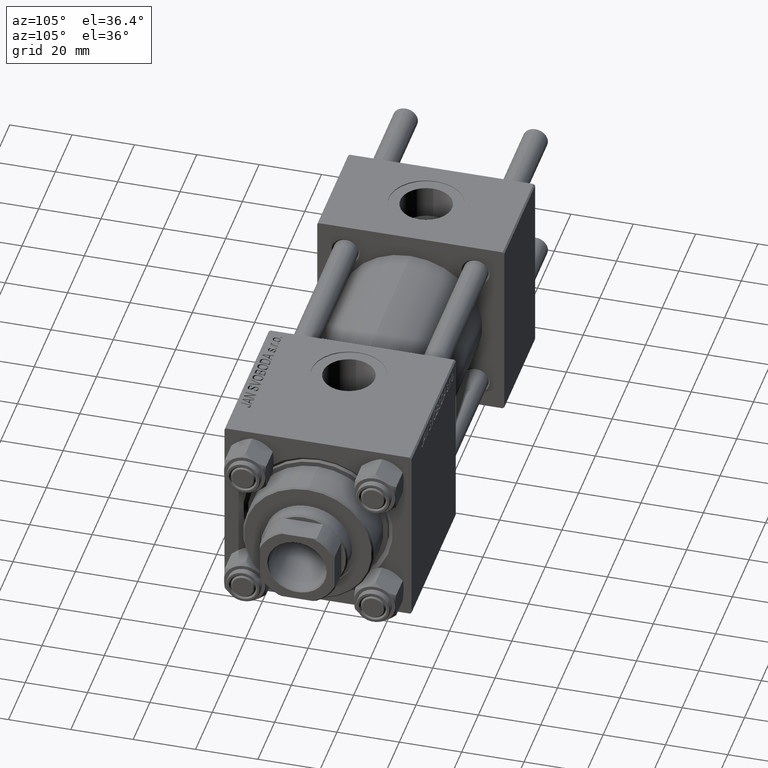
[diagram: clean part render]
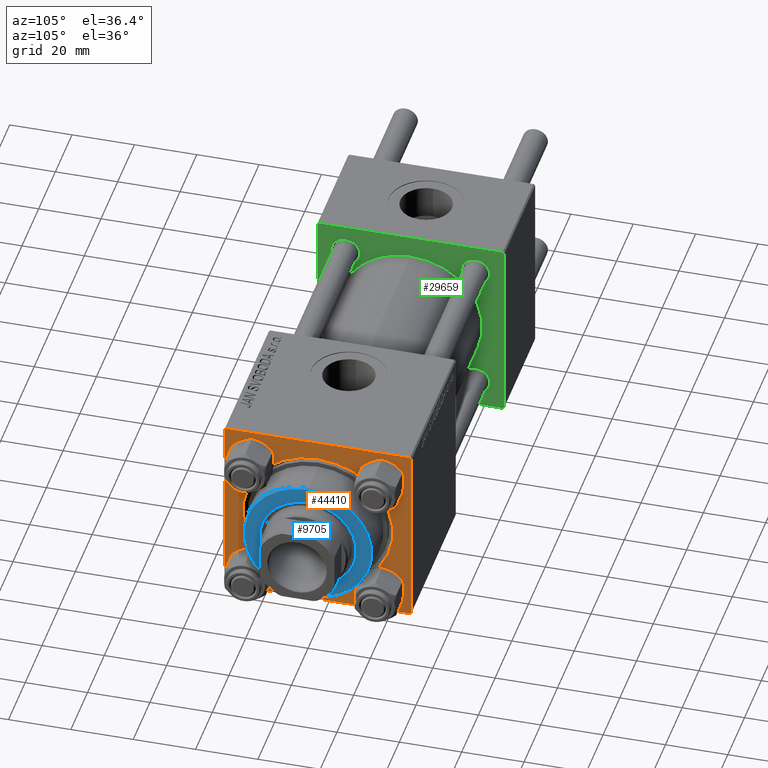
[diagram: same view with three faces highlighted in distinct colors, each labeled with its STEP entity id]
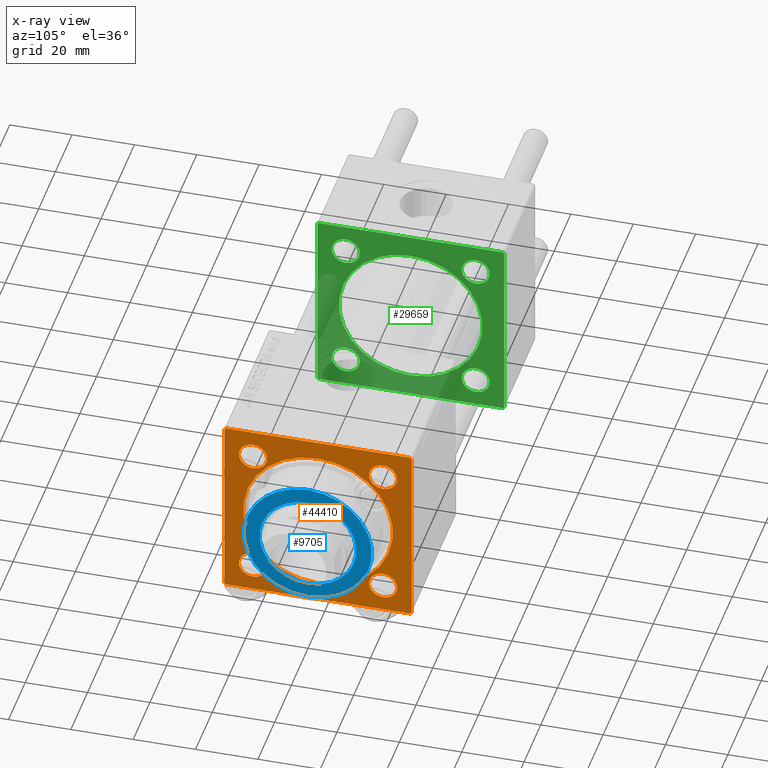
[diagram: x-ray of the same camera — body ghosted, the three highlighted faces saturated]
A machine part, auxiliary view with three faces highlighted in distinct colors.
The next image is the same camera in x-ray (body ghosted, the three faces saturated) — at least one of them is partly hidden behind the body in this view.
Their STEP definitions:

[orange] entity #44410 — the highlighted planar face has unit normal (-1, 0, 0).
#124 = LINE ( 'NONE', #12907, #48979 ) ;
#388 = ORIENTED_EDGE ( 'NONE', *, *, #11774, .T. ) ;
#489 = DIRECTION ( 'NONE',  ( 0.000000000000000000, 0.000000000000000000, 1.000000000000000000 ) ) ;
#818 = DIRECTION ( 'NONE',  ( -0.000000000000000000, 0.7071067811865474617, 0.7071067811865474617 ) ) ;
#831 = CIRCLE ( 'NONE', #34139, 4.500000000000017764 ) ;
#835 = AXIS2_PLACEMENT_3D ( 'NONE', #20297, #36217, #489 ) ;
#1056 = CARTESIAN_POINT ( 'NONE',  ( 148.0000000000000000, 20.84999999999999787, 25.35000000000001918 ) ) ;
#1235 = VECTOR ( 'NONE', #818, 1000.000000000000114 ) ;
#1416 = EDGE_LOOP ( 'NONE', ( #29534, #13677 ) ) ;
#1675 = LINE ( 'NONE', #8986, #15742 ) ;
#2212 = EDGE_CURVE ( 'NONE', #18282, #45998, #49969, .T. ) ;
#2482 = ORIENTED_EDGE ( 'NONE', *, *, #2212, .T. ) ;
#2554 = FACE_BOUND ( 'NONE', #1416, .T. ) ;
#2613 = DIRECTION ( 'NONE',  ( -1.000000000000000000, 0.000000000000000000, -0.000000000000000000 ) ) ;
#2656 = VERTEX_POINT ( 'NONE', #16218 ) ;
#2820 = VERTEX_POINT ( 'NONE', #27887 ) ;
#3280 = CARTESIAN_POINT ( 'NONE',  ( 148.0000000000000000, 30.00000000000000000, -29.49999999999997868 ) ) ;
#3317 = CARTESIAN_POINT ( 'NONE',  ( 148.0000000000000000, -20.84999999999999076, -20.85000000000000497 ) ) ;
#3325 = CARTESIAN_POINT ( 'NONE',  ( 148.0000000000000000, 0.000000000000000000, 0.000000000000000000 ) ) ;
#3511 = ORIENTED_EDGE ( 'NONE', *, *, #47373, .T. ) ;
#3714 = VERTEX_POINT ( 'NONE', #22968 ) ;
#4106 = ORIENTED_EDGE ( 'NONE', *, *, #8493, .F. ) ;
#4113 = VERTEX_POINT ( 'NONE', #12965 ) ;
#4497 = DIRECTION ( 'NONE',  ( 0.000000000000000000, -0.7071067811865474617, 0.7071067811865474617 ) ) ;
#4865 = VECTOR ( 'NONE', #4497, 1000.000000000000114 ) ;
#5164 = CARTESIAN_POINT ( 'NONE',  ( 148.0000000000000000, 30.00000000000000000, 30.00000000000000000 ) ) ;
#5905 = LINE ( 'NONE', #22094, #49438 ) ;
#6404 = EDGE_CURVE ( 'NONE', #47529, #38502, #19986, .T. ) ;
#6918 = CIRCLE ( 'NONE', #21106, 4.500000000000017764 ) ;
#7059 = EDGE_CURVE ( 'NONE', #38502, #47529, #831, .T. ) ;
#7220 = VERTEX_POINT ( 'NONE', #46855 ) ;
#7758 = CARTESIAN_POINT ( 'NONE',  ( 148.0000000000000000, -30.00000000000000000, 29.49999999999999289 ) ) ;
#7973 = DIRECTION ( 'NONE',  ( -1.000000000000000000, 0.000000000000000000, -0.000000000000000000 ) ) ;
#8002 = DIRECTION ( 'NONE',  ( 0.000000000000000000, 0.000000000000000000, 1.000000000000000000 ) ) ;
#8014 = DIRECTION ( 'NONE',  ( -0.000000000000000000, -0.7071067811865474617, -0.7071067811865474617 ) ) ;
#8238 = ORIENTED_EDGE ( 'NONE', *, *, #26783, .T. ) ;
#8270 = CARTESIAN_POINT ( 'NONE',  ( 148.0000000000000000, -20.84999999999999076, -16.34999999999998721 ) ) ;
#8493 = EDGE_CURVE ( 'NONE', #7220, #48425, #32292, .T. ) ;
#8986 = CARTESIAN_POINT ( 'NONE',  ( 148.0000000000000000, -29.50000000000000000, -30.00000000000000000 ) ) ;
#9048 = EDGE_LOOP ( 'NONE', ( #13177, #27876 ) ) ;
#9903 = DIRECTION ( 'NONE',  ( 0.000000000000000000, 0.000000000000000000, 1.000000000000000000 ) ) ;
#10399 = FACE_BOUND ( 'NONE', #11803, .T. ) ;
#10497 = ORIENTED_EDGE ( 'NONE', *, *, #39859, .T. ) ;
#10671 = DIRECTION ( 'NONE',  ( 0.000000000000000000, -1.000000000000000000, -1.156482317317871478E-16 ) ) ;
#10920 = VECTOR ( 'NONE', #8014, 1000.000000000000114 ) ;
#11581 = DIRECTION ( 'NONE',  ( -1.000000000000000000, 0.000000000000000000, -0.000000000000000000 ) ) ;
#11774 = EDGE_CURVE ( 'NONE', #12333, #3714, #42668, .T. ) ;
#11803 = EDGE_LOOP ( 'NONE', ( #42143, #388 ) ) ;
#12333 = VERTEX_POINT ( 'NONE', #24349 ) ;
#12907 = CARTESIAN_POINT ( 'NONE',  ( 148.0000000000000000, 30.00000000000000000, 30.00000000000000000 ) ) ;
#12965 = CARTESIAN_POINT ( 'NONE',  ( 148.0000000000000000, -30.00000000000000000, 29.49999999999999289 ) ) ;
#13177 = ORIENTED_EDGE ( 'NONE', *, *, #31322, .T. ) ;
#13677 = ORIENTED_EDGE ( 'NONE', *, *, #7059, .T. ) ;
#13781 = VERTEX_POINT ( 'NONE', #20898 ) ;
#14367 = CARTESIAN_POINT ( 'NONE',  ( 148.0000000000000000, -20.84999999999999076, 20.85000000000000497 ) ) ;
#14571 = DIRECTION ( 'NONE',  ( -0.000000000000000000, 0.000000000000000000, 1.000000000000000000 ) ) ;
#15689 = CARTESIAN_POINT ( 'NONE',  ( 148.0000000000000000, 20.84999999999999787, 20.85000000000000142 ) ) ;
#15742 = VECTOR ( 'NONE', #32715, 1000.000000000000114 ) ;
#16134 = DIRECTION ( 'NONE',  ( 0.000000000000000000, 0.000000000000000000, 1.000000000000000000 ) ) ;
#16166 = AXIS2_PLACEMENT_3D ( 'NONE', #24150, #7973, #27801 ) ;
#16218 = CARTESIAN_POINT ( 'NONE',  ( 148.0000000000000000, 29.50000000000000000, -29.99999999999999289 ) ) ;
#16245 = AXIS2_PLACEMENT_3D ( 'NONE', #14367, #2613, #43282 ) ;
#16499 = CARTESIAN_POINT ( 'NONE',  ( 148.0000000000000000, 29.50000000000000000, 30.00000000000000000 ) ) ;
#17166 = ORIENTED_EDGE ( 'NONE', *, *, #43347, .T. ) ;
#17252 = EDGE_CURVE ( 'NONE', #2656, #48425, #44630, .T. ) ;
#17728 = CARTESIAN_POINT ( 'NONE',  ( 148.0000000000000000, 20.84999999999999787, -20.85000000000000142 ) ) ;
#18215 = CARTESIAN_POINT ( 'NONE',  ( 148.0000000000000000, 29.50000000000000000, 30.00000000000000000 ) ) ;
#18282 = VERTEX_POINT ( 'NONE', #46437 ) ;
#18441 = DIRECTION ( 'NONE',  ( -1.000000000000000000, 0.000000000000000000, -0.000000000000000000 ) ) ;
#18647 = AXIS2_PLACEMENT_3D ( 'NONE', #32281, #44026, #16134 ) ;
#18841 = EDGE_CURVE ( 'NONE', #13781, #27936, #42077, .T. ) ;
#19986 = CIRCLE ( 'NONE', #22504, 4.500000000000017764 ) ;
#20032 = VERTEX_POINT ( 'NONE', #18215 ) ;
#20232 = CARTESIAN_POINT ( 'NONE',  ( 148.0000000000000000, -29.50000000000000000, -30.00000000000000000 ) ) ;
#20297 = CARTESIAN_POINT ( 'NONE',  ( 148.0000000000000000, 0.000000000000000000, 0.000000000000000000 ) ) ;
#20645 = CARTESIAN_POINT ( 'NONE',  ( 148.0000000000000000, 2.939152317953652628E-15, 24.00000000000003908 ) ) ;
#20840 = EDGE_CURVE ( 'NONE', #33405, #4113, #35415, .T. ) ;
#20898 = CARTESIAN_POINT ( 'NONE',  ( 148.0000000000000000, -20.84999999999999076, 25.35000000000002274 ) ) ;
#21106 = AXIS2_PLACEMENT_3D ( 'NONE', #3317, #30966, #8002 ) ;
#21571 = DIRECTION ( 'NONE',  ( 0.000000000000000000, 0.000000000000000000, -1.000000000000000000 ) ) ;
#22094 = CARTESIAN_POINT ( 'NONE',  ( 148.0000000000000000, -30.00000000000000000, 29.99999999999999289 ) ) ;
#22504 = AXIS2_PLACEMENT_3D ( 'NONE', #30957, #42963, #47126 ) ;
#22904 = DIRECTION ( 'NONE',  ( -1.000000000000000000, 0.000000000000000000, -0.000000000000000000 ) ) ;
#22968 = CARTESIAN_POINT ( 'NONE',  ( 148.0000000000000000, 20.84999999999999787, -25.35000000000001918 ) ) ;
#23213 = VERTEX_POINT ( 'NONE', #8270 ) ;
#23417 = FACE_BOUND ( 'NONE', #49171, .T. ) ;
#24150 = CARTESIAN_POINT ( 'NONE',  ( 148.0000000000000000, 0.000000000000000000, 0.000000000000000000 ) ) ;
#24349 = CARTESIAN_POINT ( 'NONE',  ( 148.0000000000000000, 20.84999999999999787, -16.34999999999998366 ) ) ;
#24484 = DIRECTION ( 'NONE',  ( 0.000000000000000000, 0.000000000000000000, -1.000000000000000000 ) ) ;
#24648 = ORIENTED_EDGE ( 'NONE', *, *, #20840, .T. ) ;
#25114 = ORIENTED_EDGE ( 'NONE', *, *, #31732, .T. ) ;
#25191 = EDGE_CURVE ( 'NONE', #3714, #12333, #34395, .T. ) ;
#26059 = CARTESIAN_POINT ( 'NONE',  ( 148.0000000000000000, 30.00000000000000000, -29.99999999999999289 ) ) ;
#26302 = FACE_BOUND ( 'NONE', #9048, .T. ) ;
#26783 = EDGE_CURVE ( 'NONE', #2820, #23213, #6918, .T. ) ;
#26885 = AXIS2_PLACEMENT_3D ( 'NONE', #36349, #11581, #35313 ) ;
#27457 = CARTESIAN_POINT ( 'NONE',  ( 148.0000000000000000, 20.84999999999999787, 16.34999999999998366 ) ) ;
#27801 = DIRECTION ( 'NONE',  ( 0.000000000000000000, 0.000000000000000000, 1.000000000000000000 ) ) ;
#27834 = EDGE_CURVE ( 'NONE', #4113, #37568, #5905, .T. ) ;
#27876 = ORIENTED_EDGE ( 'NONE', *, *, #18841, .T. ) ;
#27887 = CARTESIAN_POINT ( 'NONE',  ( 148.0000000000000000, -20.84999999999999076, -25.35000000000002274 ) ) ;
#27936 = VERTEX_POINT ( 'NONE', #30157 ) ;
#28540 = DIRECTION ( 'NONE',  ( 0.000000000000000000, -1.000000000000000000, -1.156482317317871478E-16 ) ) ;
#29457 = DIRECTION ( 'NONE',  ( -1.000000000000000000, 0.000000000000000000, -0.000000000000000000 ) ) ;
#29534 = ORIENTED_EDGE ( 'NONE', *, *, #6404, .T. ) ;
#29706 = LINE ( 'NONE', #26059, #35729 ) ;
#30157 = CARTESIAN_POINT ( 'NONE',  ( 148.0000000000000000, -20.84999999999999076, 16.34999999999998721 ) ) ;
#30957 = CARTESIAN_POINT ( 'NONE',  ( 148.0000000000000000, 20.84999999999999787, 20.85000000000000142 ) ) ;
#30966 = DIRECTION ( 'NONE',  ( -1.000000000000000000, 0.000000000000000000, -0.000000000000000000 ) ) ;
#31322 = EDGE_CURVE ( 'NONE', #27936, #13781, #33646, .T. ) ;
#31577 = DIRECTION ( 'NONE',  ( -1.000000000000000000, 0.000000000000000000, -0.000000000000000000 ) ) ;
#31649 = ORIENTED_EDGE ( 'NONE', *, *, #48041, .F. ) ;
#31732 = EDGE_CURVE ( 'NONE', #45998, #18282, #32829, .T. ) ;
#32281 = CARTESIAN_POINT ( 'NONE',  ( 148.0000000000000000, -20.84999999999999076, 20.85000000000000497 ) ) ;
#32292 = LINE ( 'NONE', #5164, #45052 ) ;
#32393 = ORIENTED_EDGE ( 'NONE', *, *, #27834, .T. ) ;
#32715 = DIRECTION ( 'NONE',  ( 0.000000000000000000, 0.7071067811865474617, -0.7071067811865474617 ) ) ;
#32829 = CIRCLE ( 'NONE', #16166, 24.00000000000003908 ) ;
#33405 = VERTEX_POINT ( 'NONE', #34588 ) ;
#33646 = CIRCLE ( 'NONE', #18647, 4.500000000000017764 ) ;
#33903 = AXIS2_PLACEMENT_3D ( 'NONE', #43205, #18441, #42180 ) ;
#34139 = AXIS2_PLACEMENT_3D ( 'NONE', #15689, #31577, #38902 ) ;
#34395 = CIRCLE ( 'NONE', #26885, 4.500000000000017764 ) ;
#34588 = CARTESIAN_POINT ( 'NONE',  ( 148.0000000000000000, -29.50000000000000000, 29.99999999999999289 ) ) ;
#34630 = FACE_OUTER_BOUND ( 'NONE', #45788, .T. ) ;
#34782 = CARTESIAN_POINT ( 'NONE',  ( 148.0000000000000000, -30.00000000000000000, -29.49999999999998579 ) ) ;
#35313 = DIRECTION ( 'NONE',  ( 0.000000000000000000, 0.000000000000000000, 1.000000000000000000 ) ) ;
#35415 = LINE ( 'NONE', #7758, #10920 ) ;
#35729 = VECTOR ( 'NONE', #10671, 1000.000000000000000 ) ;
#35795 = LINE ( 'NONE', #16499, #4865 ) ;
#36217 = DIRECTION ( 'NONE',  ( -1.000000000000000000, 0.000000000000000000, -0.000000000000000000 ) ) ;
#36349 = CARTESIAN_POINT ( 'NONE',  ( 148.0000000000000000, 20.84999999999999787, -20.85000000000000142 ) ) ;
#37314 = CARTESIAN_POINT ( 'NONE',  ( 148.0000000000000000, 30.00000000000000000, -29.49999999999999289 ) ) ;
#37568 = VERTEX_POINT ( 'NONE', #34782 ) ;
#38120 = VERTEX_POINT ( 'NONE', #20232 ) ;
#38502 = VERTEX_POINT ( 'NONE', #1056 ) ;
#38902 = DIRECTION ( 'NONE',  ( 0.000000000000000000, 0.000000000000000000, 1.000000000000000000 ) ) ;
#38937 = CIRCLE ( 'NONE', #33903, 4.500000000000017764 ) ;
#39859 = EDGE_CURVE ( 'NONE', #23213, #2820, #38937, .T. ) ;
#42077 = CIRCLE ( 'NONE', #16245, 4.500000000000017764 ) ;
#42143 = ORIENTED_EDGE ( 'NONE', *, *, #25191, .T. ) ;
#42180 = DIRECTION ( 'NONE',  ( 0.000000000000000000, 0.000000000000000000, 1.000000000000000000 ) ) ;
#42331 = ORIENTED_EDGE ( 'NONE', *, *, #42400, .T. ) ;
#42400 = EDGE_CURVE ( 'NONE', #20032, #33405, #124, .T. ) ;
#42668 = CIRCLE ( 'NONE', #46025, 4.500000000000017764 ) ;
#42963 = DIRECTION ( 'NONE',  ( -1.000000000000000000, 0.000000000000000000, -0.000000000000000000 ) ) ;
#43205 = CARTESIAN_POINT ( 'NONE',  ( 148.0000000000000000, -20.84999999999999076, -20.85000000000000497 ) ) ;
#43226 = FACE_BOUND ( 'NONE', #51252, .T. ) ;
#43282 = DIRECTION ( 'NONE',  ( 0.000000000000000000, 0.000000000000000000, 1.000000000000000000 ) ) ;
#43347 = EDGE_CURVE ( 'NONE', #7220, #20032, #35795, .T. ) ;
#44026 = DIRECTION ( 'NONE',  ( -1.000000000000000000, 0.000000000000000000, -0.000000000000000000 ) ) ;
#44410 = ADVANCED_FACE ( 'NONE', ( #23417, #10399, #2554, #26302, #43226, #34630 ), #50537, .F. ) ;
#44630 = LINE ( 'NONE', #37314, #1235 ) ;
#45052 = VECTOR ( 'NONE', #24484, 1000.000000000000000 ) ;
#45788 = EDGE_LOOP ( 'NONE', ( #32393, #3511, #31649, #48951, #4106, #17166, #42331, #24648 ) ) ;
#45998 = VERTEX_POINT ( 'NONE', #20645 ) ;
#46025 = AXIS2_PLACEMENT_3D ( 'NONE', #17728, #29457, #9903 ) ;
#46437 = CARTESIAN_POINT ( 'NONE',  ( 148.0000000000000000, 0.000000000000000000, -24.00000000000003908 ) ) ;
#46855 = CARTESIAN_POINT ( 'NONE',  ( 148.0000000000000000, 30.00000000000000000, 29.50000000000000000 ) ) ;
#47126 = DIRECTION ( 'NONE',  ( 0.000000000000000000, 0.000000000000000000, 1.000000000000000000 ) ) ;
#47373 = EDGE_CURVE ( 'NONE', #37568, #38120, #1675, .T. ) ;
#47529 = VERTEX_POINT ( 'NONE', #27457 ) ;
#48041 = EDGE_CURVE ( 'NONE', #2656, #38120, #29706, .T. ) ;
#48089 = AXIS2_PLACEMENT_3D ( 'NONE', #3325, #22904, #14571 ) ;
#48425 = VERTEX_POINT ( 'NONE', #3280 ) ;
#48951 = ORIENTED_EDGE ( 'NONE', *, *, #17252, .T. ) ;
#48979 = VECTOR ( 'NONE', #28540, 1000.000000000000000 ) ;
#49171 = EDGE_LOOP ( 'NONE', ( #8238, #10497 ) ) ;
#49438 = VECTOR ( 'NONE', #21571, 1000.000000000000000 ) ;
#49969 = CIRCLE ( 'NONE', #835, 24.00000000000003908 ) ;
#50537 = PLANE ( 'NONE',  #48089 ) ;
#51252 = EDGE_LOOP ( 'NONE', ( #2482, #25114 ) ) ;

[blue] entity #9705 — the highlighted planar face has unit normal (1, 0, -0).
#1699 = DIRECTION ( 'NONE',  ( 1.000000000000000000, 0.000000000000000000, 0.000000000000000000 ) ) ;
#5934 = FACE_OUTER_BOUND ( 'NONE', #15069, .T. ) ;
#6706 = DIRECTION ( 'NONE',  ( 1.000000000000000000, 0.000000000000000000, -0.000000000000000000 ) ) ;
#7258 = CARTESIAN_POINT ( 'NONE',  ( 20.49999999999999645, 2.541142108230757480E-15, 40.70000000000000284 ) ) ;
#7364 = DIRECTION ( 'NONE',  ( 0.000000000000000000, 0.000000000000000000, 1.000000000000000000 ) ) ;
#9035 = AXIS2_PLACEMENT_3D ( 'NONE', #31104, #7364, #46252 ) ;
#9705 = ADVANCED_FACE ( 'NONE', ( #41671, #5934 ), #30959, .T. ) ;
#14272 = AXIS2_PLACEMENT_3D ( 'NONE', #19621, #35535, #24063 ) ;
#15069 = EDGE_LOOP ( 'NONE', ( #45122, #30169 ) ) ;
#15139 = AXIS2_PLACEMENT_3D ( 'NONE', #51042, #23405, #6706 ) ;
#15392 = AXIS2_PLACEMENT_3D ( 'NONE', #38638, #50619, #46712 ) ;
#19621 = CARTESIAN_POINT ( 'NONE',  ( 0.000000000000000000, 0.000000000000000000, 40.70000000000000284 ) ) ;
#21671 = EDGE_CURVE ( 'NONE', #31182, #30313, #23431, .T. ) ;
#22290 = CARTESIAN_POINT ( 'NONE',  ( 0.000000000000000000, 0.000000000000000000, 40.70000000000000284 ) ) ;
#23405 = DIRECTION ( 'NONE',  ( 0.000000000000000000, 0.000000000000000000, 1.000000000000000000 ) ) ;
#23431 = CIRCLE ( 'NONE', #14272, 20.49999999999999645 ) ;
#24063 = DIRECTION ( 'NONE',  ( 1.000000000000000000, 0.000000000000000000, 0.000000000000000000 ) ) ;
#24301 = VERTEX_POINT ( 'NONE', #34505 ) ;
#28943 = CARTESIAN_POINT ( 'NONE',  ( -20.49999999999999645, 0.000000000000000000, 40.70000000000000284 ) ) ;
#29017 = EDGE_CURVE ( 'NONE', #24301, #37115, #30339, .T. ) ;
#29082 = DIRECTION ( 'NONE',  ( 0.000000000000000000, 0.000000000000000000, 1.000000000000000000 ) ) ;
#30029 = EDGE_CURVE ( 'NONE', #37115, #24301, #36190, .T. ) ;
#30169 = ORIENTED_EDGE ( 'NONE', *, *, #42581, .T. ) ;
#30313 = VERTEX_POINT ( 'NONE', #7258 ) ;
#30339 = CIRCLE ( 'NONE', #33692, 15.50000000000000000 ) ;
#30959 = PLANE ( 'NONE',  #15139 ) ;
#31104 = CARTESIAN_POINT ( 'NONE',  ( 0.000000000000000000, 0.000000000000000000, 40.70000000000000284 ) ) ;
#31182 = VERTEX_POINT ( 'NONE', #28943 ) ;
#33302 = CARTESIAN_POINT ( 'NONE',  ( -15.50000000000000000, 1.898202538678397557E-15, 40.70000000000000284 ) ) ;
#33692 = AXIS2_PLACEMENT_3D ( 'NONE', #22290, #29082, #1699 ) ;
#34505 = CARTESIAN_POINT ( 'NONE',  ( 15.50000000000000000, 0.000000000000000000, 40.70000000000000284 ) ) ;
#35535 = DIRECTION ( 'NONE',  ( 0.000000000000000000, 0.000000000000000000, 1.000000000000000000 ) ) ;
#36190 = CIRCLE ( 'NONE', #15392, 15.50000000000000000 ) ;
#36514 = CIRCLE ( 'NONE', #9035, 20.49999999999999645 ) ;
#37115 = VERTEX_POINT ( 'NONE', #33302 ) ;
#38638 = CARTESIAN_POINT ( 'NONE',  ( 0.000000000000000000, 0.000000000000000000, 40.70000000000000284 ) ) ;
#39345 = ORIENTED_EDGE ( 'NONE', *, *, #30029, .F. ) ;
#41447 = ORIENTED_EDGE ( 'NONE', *, *, #29017, .F. ) ;
#41671 = FACE_BOUND ( 'NONE', #44780, .T. ) ;
#42581 = EDGE_CURVE ( 'NONE', #30313, #31182, #36514, .T. ) ;
#44780 = EDGE_LOOP ( 'NONE', ( #41447, #39345 ) ) ;
#45122 = ORIENTED_EDGE ( 'NONE', *, *, #21671, .T. ) ;
#46252 = DIRECTION ( 'NONE',  ( 1.000000000000000000, 0.000000000000000000, 0.000000000000000000 ) ) ;
#46712 = DIRECTION ( 'NONE',  ( 1.000000000000000000, 0.000000000000000000, 0.000000000000000000 ) ) ;
#50619 = DIRECTION ( 'NONE',  ( 0.000000000000000000, 0.000000000000000000, 1.000000000000000000 ) ) ;
#51042 = CARTESIAN_POINT ( 'NONE',  ( 0.000000000000000000, 0.000000000000000000, 40.70000000000000284 ) ) ;

[green] entity #29659 — the highlighted planar face has unit normal (-1, 0, 0).
#32 = LINE ( 'NONE', #46732, #36681 ) ;
#417 = DIRECTION ( 'NONE',  ( 0.000000000000000000, 0.000000000000000000, 1.000000000000000000 ) ) ;
#435 = CARTESIAN_POINT ( 'NONE',  ( 37.00000000000000000, 29.49999999999999289, 30.00000000000000000 ) ) ;
#874 = VERTEX_POINT ( 'NONE', #36170 ) ;
#897 = CARTESIAN_POINT ( 'NONE',  ( 37.00000000000000000, -20.84999999999999076, 16.35000000000001208 ) ) ;
#988 = DIRECTION ( 'NONE',  ( 0.000000000000000000, 0.000000000000000000, 1.000000000000000000 ) ) ;
#1005 = CARTESIAN_POINT ( 'NONE',  ( 37.00000000000000000, 20.84999999999999787, -16.35000000000001208 ) ) ;
#1256 = ORIENTED_EDGE ( 'NONE', *, *, #23028, .T. ) ;
#1345 = VECTOR ( 'NONE', #24270, 1000.000000000000114 ) ;
#1792 = VECTOR ( 'NONE', #26559, 1000.000000000000000 ) ;
#2199 = CARTESIAN_POINT ( 'NONE',  ( 37.00000000000000000, -20.84999999999999076, -16.35000000000001208 ) ) ;
#2943 = EDGE_CURVE ( 'NONE', #28261, #24665, #27519, .T. ) ;
#2978 = CARTESIAN_POINT ( 'NONE',  ( 37.00000000000000000, 29.99999999999999289, -29.50000000000000000 ) ) ;
#3588 = VERTEX_POINT ( 'NONE', #29994 ) ;
#3823 = DIRECTION ( 'NONE',  ( 0.000000000000000000, 0.000000000000000000, 1.000000000000000000 ) ) ;
#4036 = EDGE_LOOP ( 'NONE', ( #12230, #41943 ) ) ;
#4595 = EDGE_CURVE ( 'NONE', #874, #5488, #50046, .T. ) ;
#5421 = EDGE_CURVE ( 'NONE', #37630, #3588, #31782, .T. ) ;
#5488 = VERTEX_POINT ( 'NONE', #1005 ) ;
#5961 = CARTESIAN_POINT ( 'NONE',  ( 37.00000000000000000, 29.49999999999999289, 30.00000000000000000 ) ) ;
#6497 = CARTESIAN_POINT ( 'NONE',  ( 37.00000000000000000, -20.84999999999999076, -25.34999999999999432 ) ) ;
#6530 = ORIENTED_EDGE ( 'NONE', *, *, #42119, .T. ) ;
#6617 = DIRECTION ( 'NONE',  ( -0.000000000000000000, 0.7071067811865574537, 0.7071067811865376918 ) ) ;
#6996 = DIRECTION ( 'NONE',  ( 0.000000000000000000, -0.7071067811865474617, 0.7071067811865474617 ) ) ;
#7602 = VECTOR ( 'NONE', #32290, 1000.000000000000000 ) ;
#7859 = DIRECTION ( 'NONE',  ( -0.000000000000000000, -0.7071067811865474617, -0.7071067811865474617 ) ) ;
#8038 = EDGE_CURVE ( 'NONE', #16215, #37630, #32, .T. ) ;
#8235 = CIRCLE ( 'NONE', #37400, 4.499999999999990230 ) ;
#9352 = AXIS2_PLACEMENT_3D ( 'NONE', #40882, #21052, #988 ) ;
#9607 = FACE_BOUND ( 'NONE', #4036, .T. ) ;
#9636 = CARTESIAN_POINT ( 'NONE',  ( 37.00000000000000000, 29.99999999999999289, 30.00000000000000000 ) ) ;
#9954 = EDGE_CURVE ( 'NONE', #36698, #16248, #16006, .T. ) ;
#10435 = VERTEX_POINT ( 'NONE', #24394 ) ;
#10869 = EDGE_CURVE ( 'NONE', #24481, #43481, #25139, .T. ) ;
#11831 = DIRECTION ( 'NONE',  ( 0.000000000000000000, -1.000000000000000000, -1.156482317317871725E-16 ) ) ;
#12189 = DIRECTION ( 'NONE',  ( 0.000000000000000000, 0.000000000000000000, 1.000000000000000000 ) ) ;
#12230 = ORIENTED_EDGE ( 'NONE', *, *, #45545, .F. ) ;
#12423 = CARTESIAN_POINT ( 'NONE',  ( 37.00000000000000000, -20.84999999999999076, 20.85000000000000497 ) ) ;
#12671 = VECTOR ( 'NONE', #6996, 1000.000000000000114 ) ;
#12758 = CARTESIAN_POINT ( 'NONE',  ( 37.00000000000000000, -20.84999999999999076, -20.85000000000000497 ) ) ;
#13901 = EDGE_LOOP ( 'NONE', ( #6530, #27912 ) ) ;
#13977 = CARTESIAN_POINT ( 'NONE',  ( 37.00000000000000000, -20.84999999999999076, 20.85000000000000497 ) ) ;
#15302 = CARTESIAN_POINT ( 'NONE',  ( 37.00000000000000000, 29.99999999999999289, 29.50000000000000000 ) ) ;
#15607 = EDGE_CURVE ( 'NONE', #32035, #10435, #21155, .T. ) ;
#15734 = ORIENTED_EDGE ( 'NONE', *, *, #9954, .F. ) ;
#15747 = CARTESIAN_POINT ( 'NONE',  ( 37.00000000000000000, 29.99999999999999289, -30.00000000000000000 ) ) ;
#16006 = LINE ( 'NONE', #15747, #20105 ) ;
#16061 = VERTEX_POINT ( 'NONE', #23528 ) ;
#16132 = AXIS2_PLACEMENT_3D ( 'NONE', #18285, #22207, #45429 ) ;
#16159 = ORIENTED_EDGE ( 'NONE', *, *, #41488, .T. ) ;
#16215 = VERTEX_POINT ( 'NONE', #42244 ) ;
#16248 = VERTEX_POINT ( 'NONE', #41471 ) ;
#16341 = DIRECTION ( 'NONE',  ( -1.000000000000000000, 0.000000000000000000, -0.000000000000000000 ) ) ;
#16696 = CARTESIAN_POINT ( 'NONE',  ( 37.00000000000000000, 29.99999999999999289, 30.00000000000000000 ) ) ;
#17170 = FACE_BOUND ( 'NONE', #42391, .T. ) ;
#17422 = FACE_BOUND ( 'NONE', #31915, .T. ) ;
#17622 = DIRECTION ( 'NONE',  ( -1.000000000000000000, 0.000000000000000000, -0.000000000000000000 ) ) ;
#17716 = LINE ( 'NONE', #5961, #12671 ) ;
#18024 = VERTEX_POINT ( 'NONE', #19353 ) ;
#18285 = CARTESIAN_POINT ( 'NONE',  ( 37.00000000000000000, 0.000000000000000000, 0.000000000000000000 ) ) ;
#18610 = DIRECTION ( 'NONE',  ( 0.000000000000000000, 0.000000000000000000, 1.000000000000000000 ) ) ;
#19208 = AXIS2_PLACEMENT_3D ( 'NONE', #28307, #48387, #417 ) ;
#19255 = CARTESIAN_POINT ( 'NONE',  ( 37.00000000000000000, 29.49999999999997868, -30.00000000000000000 ) ) ;
#19353 = CARTESIAN_POINT ( 'NONE',  ( 37.00000000000000000, -20.84999999999999076, 25.34999999999999432 ) ) ;
#19686 = ORIENTED_EDGE ( 'NONE', *, *, #37639, .T. ) ;
#20105 = VECTOR ( 'NONE', #11831, 1000.000000000000000 ) ;
#21052 = DIRECTION ( 'NONE',  ( -1.000000000000000000, 0.000000000000000000, -0.000000000000000000 ) ) ;
#21155 = CIRCLE ( 'NONE', #16132, 23.00000000000000000 ) ;
#21336 = DIRECTION ( 'NONE',  ( -1.000000000000000000, 0.000000000000000000, -0.000000000000000000 ) ) ;
#21613 = ORIENTED_EDGE ( 'NONE', *, *, #10869, .T. ) ;
#21861 = CIRCLE ( 'NONE', #9352, 4.499999999999990230 ) ;
#22207 = DIRECTION ( 'NONE',  ( 1.000000000000000000, -0.000000000000000000, 0.000000000000000000 ) ) ;
#22320 = EDGE_CURVE ( 'NONE', #24737, #16061, #37521, .T. ) ;
#23028 = EDGE_CURVE ( 'NONE', #24737, #41422, #17716, .T. ) ;
#23528 = CARTESIAN_POINT ( 'NONE',  ( 37.00000000000000000, 29.99999999999999289, -29.50000000000000000 ) ) ;
#23838 = CARTESIAN_POINT ( 'NONE',  ( 37.00000000000000000, 2.816687638038911957E-15, -23.00000000000000000 ) ) ;
#24033 = EDGE_CURVE ( 'NONE', #43481, #24481, #21861, .T. ) ;
#24270 = DIRECTION ( 'NONE',  ( 0.000000000000000000, 0.7071067811865474617, -0.7071067811865474617 ) ) ;
#24276 = LINE ( 'NONE', #16696, #43816 ) ;
#24394 = CARTESIAN_POINT ( 'NONE',  ( 37.00000000000000000, 0.000000000000000000, 23.00000000000000000 ) ) ;
#24418 = ORIENTED_EDGE ( 'NONE', *, *, #24033, .T. ) ;
#24481 = VERTEX_POINT ( 'NONE', #33955 ) ;
#24665 = VERTEX_POINT ( 'NONE', #6497 ) ;
#24737 = VERTEX_POINT ( 'NONE', #15302 ) ;
#24940 = ORIENTED_EDGE ( 'NONE', *, *, #35717, .T. ) ;
#24943 = CARTESIAN_POINT ( 'NONE',  ( 37.00000000000000000, -20.84999999999999076, -20.85000000000000497 ) ) ;
#25139 = CIRCLE ( 'NONE', #40965, 4.499999999999990230 ) ;
#25223 = DIRECTION ( 'NONE',  ( 0.000000000000000000, 0.000000000000000000, 1.000000000000000000 ) ) ;
#25225 = DIRECTION ( 'NONE',  ( 0.000000000000000000, 0.000000000000000000, 1.000000000000000000 ) ) ;
#26296 = ORIENTED_EDGE ( 'NONE', *, *, #22320, .F. ) ;
#26434 = DIRECTION ( 'NONE',  ( 1.000000000000000000, -0.000000000000000000, 0.000000000000000000 ) ) ;
#26498 = CIRCLE ( 'NONE', #45673, 4.499999999999990230 ) ;
#26559 = DIRECTION ( 'NONE',  ( 0.000000000000000000, 0.000000000000000000, -1.000000000000000000 ) ) ;
#26705 = LINE ( 'NONE', #2978, #28023 ) ;
#27311 = CIRCLE ( 'NONE', #40646, 23.00000000000000000 ) ;
#27519 = CIRCLE ( 'NONE', #47475, 4.499999999999990230 ) ;
#27912 = ORIENTED_EDGE ( 'NONE', *, *, #2943, .T. ) ;
#27916 = CARTESIAN_POINT ( 'NONE',  ( 37.00000000000000000, -29.50000000000001066, -30.00000000000000711 ) ) ;
#28023 = VECTOR ( 'NONE', #6617, 999.9999999999998863 ) ;
#28171 = CIRCLE ( 'NONE', #42318, 4.499999999999990230 ) ;
#28261 = VERTEX_POINT ( 'NONE', #2199 ) ;
#28307 = CARTESIAN_POINT ( 'NONE',  ( 37.00000000000000000, 20.84999999999999787, -20.85000000000000142 ) ) ;
#28360 = DIRECTION ( 'NONE',  ( -1.000000000000000000, 0.000000000000000000, -0.000000000000000000 ) ) ;
#28645 = FACE_BOUND ( 'NONE', #13901, .T. ) ;
#28650 = DIRECTION ( 'NONE',  ( -1.000000000000000000, 0.000000000000000000, -0.000000000000000000 ) ) ;
#28895 = ORIENTED_EDGE ( 'NONE', *, *, #39965, .T. ) ;
#29659 = ADVANCED_FACE ( 'NONE', ( #28645, #17170, #17422, #48978, #9607, #40401 ), #41162, .F. ) ;
#29697 = ORIENTED_EDGE ( 'NONE', *, *, #48259, .T. ) ;
#29863 = DIRECTION ( 'NONE',  ( 0.000000000000000000, 0.000000000000000000, 1.000000000000000000 ) ) ;
#29994 = CARTESIAN_POINT ( 'NONE',  ( 37.00000000000000000, -30.00000000000000000, -29.50000000000001776 ) ) ;
#31782 = LINE ( 'NONE', #47699, #7602 ) ;
#31915 = EDGE_LOOP ( 'NONE', ( #28895, #16159 ) ) ;
#32000 = ORIENTED_EDGE ( 'NONE', *, *, #5421, .T. ) ;
#32035 = VERTEX_POINT ( 'NONE', #23838 ) ;
#32290 = DIRECTION ( 'NONE',  ( 0.000000000000000000, 0.000000000000000000, -1.000000000000000000 ) ) ;
#32596 = DIRECTION ( 'NONE',  ( 0.000000000000000000, -1.000000000000000000, -1.156482317317871725E-16 ) ) ;
#32813 = DIRECTION ( 'NONE',  ( 0.000000000000000000, 0.000000000000000000, 1.000000000000000000 ) ) ;
#33812 = ORIENTED_EDGE ( 'NONE', *, *, #8038, .T. ) ;
#33955 = CARTESIAN_POINT ( 'NONE',  ( 37.00000000000000000, 20.84999999999999787, 25.34999999999999076 ) ) ;
#34328 = ORIENTED_EDGE ( 'NONE', *, *, #4595, .T. ) ;
#35717 = EDGE_CURVE ( 'NONE', #3588, #16248, #39914, .T. ) ;
#36170 = CARTESIAN_POINT ( 'NONE',  ( 37.00000000000000000, 20.84999999999999787, -25.34999999999999076 ) ) ;
#36449 = DIRECTION ( 'NONE',  ( -1.000000000000000000, 0.000000000000000000, -0.000000000000000000 ) ) ;
#36560 = EDGE_CURVE ( 'NONE', #41422, #16215, #24276, .T. ) ;
#36681 = VECTOR ( 'NONE', #7859, 1000.000000000000114 ) ;
#36698 = VERTEX_POINT ( 'NONE', #19255 ) ;
#37400 = AXIS2_PLACEMENT_3D ( 'NONE', #40879, #28360, #25225 ) ;
#37521 = LINE ( 'NONE', #9636, #1792 ) ;
#37630 = VERTEX_POINT ( 'NONE', #50188 ) ;
#37639 = EDGE_CURVE ( 'NONE', #36698, #16061, #26705, .T. ) ;
#39114 = CARTESIAN_POINT ( 'NONE',  ( 37.00000000000000000, 20.84999999999999787, 16.35000000000001208 ) ) ;
#39588 = ORIENTED_EDGE ( 'NONE', *, *, #36560, .T. ) ;
#39762 = CIRCLE ( 'NONE', #46417, 4.499999999999990230 ) ;
#39914 = LINE ( 'NONE', #27916, #1345 ) ;
#39965 = EDGE_CURVE ( 'NONE', #46716, #18024, #39762, .T. ) ;
#40401 = FACE_OUTER_BOUND ( 'NONE', #40405, .T. ) ;
#40405 = EDGE_LOOP ( 'NONE', ( #15734, #19686, #26296, #1256, #39588, #33812, #32000, #24940 ) ) ;
#40646 = AXIS2_PLACEMENT_3D ( 'NONE', #50171, #26434, #18610 ) ;
#40879 = CARTESIAN_POINT ( 'NONE',  ( 37.00000000000000000, 20.84999999999999787, -20.85000000000000142 ) ) ;
#40882 = CARTESIAN_POINT ( 'NONE',  ( 37.00000000000000000, 20.84999999999999787, 20.85000000000000142 ) ) ;
#40965 = AXIS2_PLACEMENT_3D ( 'NONE', #41384, #36449, #25223 ) ;
#41162 = PLANE ( 'NONE',  #51195 ) ;
#41384 = CARTESIAN_POINT ( 'NONE',  ( 37.00000000000000000, 20.84999999999999787, 20.85000000000000142 ) ) ;
#41410 = DIRECTION ( 'NONE',  ( -0.000000000000000000, 0.000000000000000000, 1.000000000000000000 ) ) ;
#41422 = VERTEX_POINT ( 'NONE', #435 ) ;
#41471 = CARTESIAN_POINT ( 'NONE',  ( 37.00000000000000000, -29.50000000000000000, -30.00000000000000711 ) ) ;
#41488 = EDGE_CURVE ( 'NONE', #18024, #46716, #28171, .T. ) ;
#41943 = ORIENTED_EDGE ( 'NONE', *, *, #15607, .F. ) ;
#42119 = EDGE_CURVE ( 'NONE', #24665, #28261, #26498, .T. ) ;
#42244 = CARTESIAN_POINT ( 'NONE',  ( 37.00000000000000000, -29.49999999999998579, 29.99999999999999289 ) ) ;
#42318 = AXIS2_PLACEMENT_3D ( 'NONE', #13977, #17622, #29863 ) ;
#42391 = EDGE_LOOP ( 'NONE', ( #34328, #29697 ) ) ;
#43481 = VERTEX_POINT ( 'NONE', #39114 ) ;
#43816 = VECTOR ( 'NONE', #32596, 1000.000000000000000 ) ;
#44805 = CARTESIAN_POINT ( 'NONE',  ( 37.00000000000000000, 0.000000000000000000, 0.000000000000000000 ) ) ;
#45429 = DIRECTION ( 'NONE',  ( 0.000000000000000000, 0.000000000000000000, 1.000000000000000000 ) ) ;
#45545 = EDGE_CURVE ( 'NONE', #10435, #32035, #27311, .T. ) ;
#45673 = AXIS2_PLACEMENT_3D ( 'NONE', #24943, #47913, #12189 ) ;
#46417 = AXIS2_PLACEMENT_3D ( 'NONE', #12423, #16341, #3823 ) ;
#46716 = VERTEX_POINT ( 'NONE', #897 ) ;
#46732 = CARTESIAN_POINT ( 'NONE',  ( 37.00000000000000000, -30.00000000000000000, 29.49999999999999289 ) ) ;
#47475 = AXIS2_PLACEMENT_3D ( 'NONE', #12758, #28650, #32813 ) ;
#47699 = CARTESIAN_POINT ( 'NONE',  ( 37.00000000000000000, -30.00000000000000000, 29.99999999999999289 ) ) ;
#47913 = DIRECTION ( 'NONE',  ( -1.000000000000000000, 0.000000000000000000, -0.000000000000000000 ) ) ;
#48259 = EDGE_CURVE ( 'NONE', #5488, #874, #8235, .T. ) ;
#48387 = DIRECTION ( 'NONE',  ( -1.000000000000000000, 0.000000000000000000, -0.000000000000000000 ) ) ;
#48978 = FACE_BOUND ( 'NONE', #49501, .T. ) ;
#49501 = EDGE_LOOP ( 'NONE', ( #24418, #21613 ) ) ;
#50046 = CIRCLE ( 'NONE', #19208, 4.499999999999990230 ) ;
#50171 = CARTESIAN_POINT ( 'NONE',  ( 37.00000000000000000, 0.000000000000000000, 0.000000000000000000 ) ) ;
#50188 = CARTESIAN_POINT ( 'NONE',  ( 37.00000000000000000, -30.00000000000000000, 29.49999999999999289 ) ) ;
#51195 = AXIS2_PLACEMENT_3D ( 'NONE', #44805, #21336, #41410 ) ;